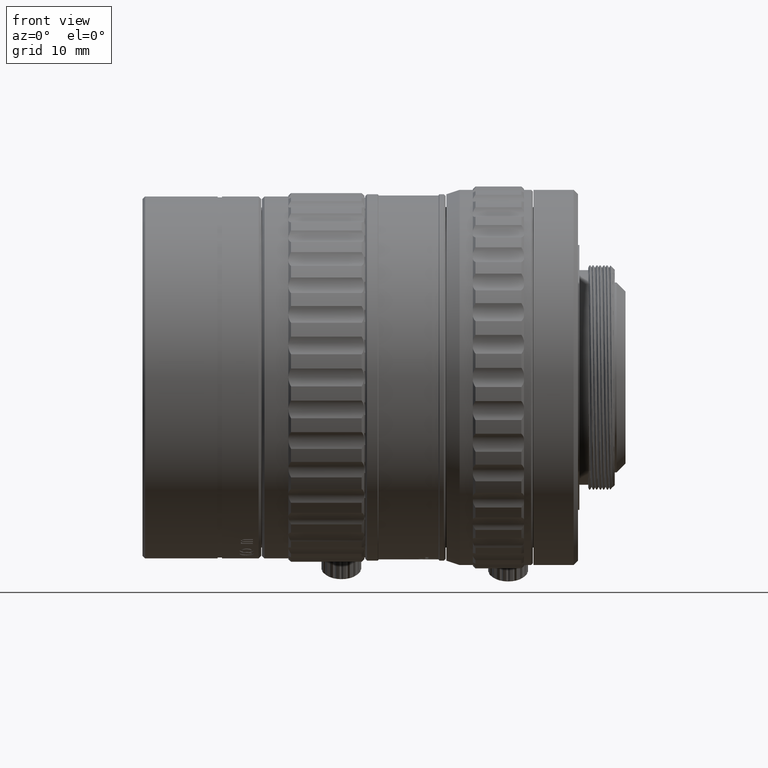
[diagram: clean part render]
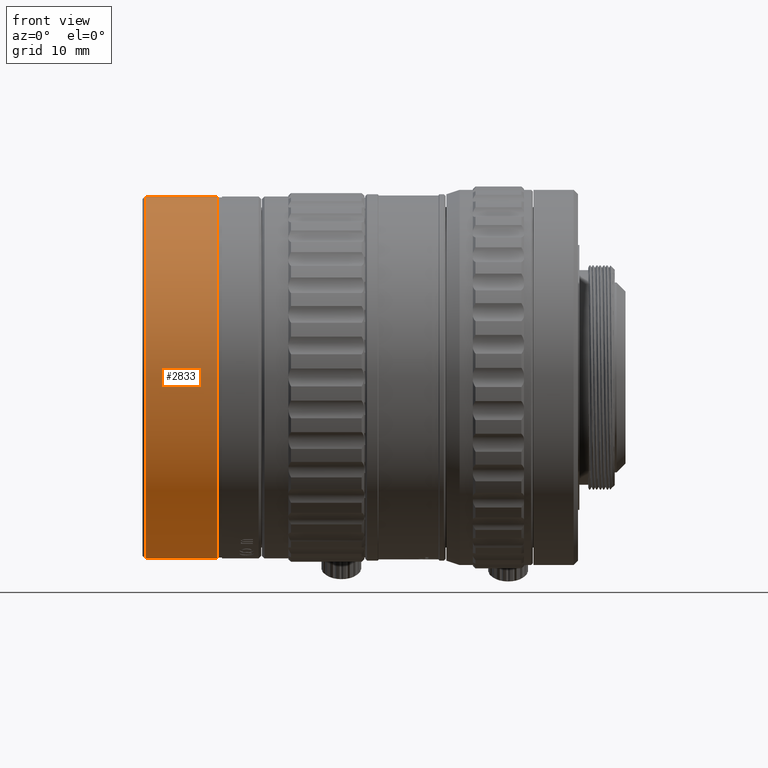
[diagram: same view with one face highlighted and labeled with its STEP entity id]
A machine part, front view. The second image highlights one B-rep face of the part: STEP entity #2833.
In plain terms, the highlighted cylindrical surface (partial cylindrical patch) has radius 20.5 mm, axis along (1, 0, 0).
Its self-contained STEP definition (entity closure, byte-faithful):
#436 = CIRCLE ( 'NONE', #43216, 20.49999724452649374 ) ;
#814 = CARTESIAN_POINT ( 'NONE',  ( 3.899999999999788969, 2.510525938251969563E-15, 20.49999999999914735 ) ) ;
#2723 = DIRECTION ( 'NONE',  ( 1.000000000000000000, 0.000000000000000000, 0.000000000000000000 ) ) ;
#2833 = ADVANCED_FACE ( 'NONE', ( #70667 ), #53490, .T. ) ;
#3721 = DIRECTION ( 'NONE',  ( -4.231033564950421861E-17, -0.8660254037844404840, -0.4999999999999967248 ) ) ;
#6032 = AXIS2_PLACEMENT_3D ( 'NONE', #102312, #103385, #92684 ) ;
#11260 = CARTESIAN_POINT ( 'NONE',  ( -4.299996624874125040, -6.229346521259000526E-14, 2.351849685621999275E-14 ) ) ;
#11930 = VERTEX_POINT ( 'NONE', #814 ) ;
#16589 = ORIENTED_EDGE ( 'NONE', *, *, #82018, .F. ) ;
#23887 = ORIENTED_EDGE ( 'NONE', *, *, #61462, .T. ) ;
#25935 = AXIS2_PLACEMENT_3D ( 'NONE', #11260, #44998, #3721 ) ;
#27179 = DIRECTION ( 'NONE',  ( 1.000000000000000000, 0.000000000000000000, 0.000000000000000000 ) ) ;
#35408 = DIRECTION ( 'NONE',  ( 0.000000000000000000, 0.000000000000000000, -1.000000000000000000 ) ) ;
#36034 = DIRECTION ( 'NONE',  ( 1.000000000000000000, 0.000000000000000000, 0.000000000000000000 ) ) ;
#36807 = CARTESIAN_POINT ( 'NONE',  ( 3.899999999999788969, 0.000000000000000000, -20.49999999999914735 ) ) ;
#36928 = VERTEX_POINT ( 'NONE', #99920 ) ;
#40153 = CIRCLE ( 'NONE', #96809, 20.49999999999914735 ) ;
#43216 = AXIS2_PLACEMENT_3D ( 'NONE', #73273, #105935, #65731 ) ;
#44998 = DIRECTION ( 'NONE',  ( 1.000000000000000000, 0.000000000000000000, 0.000000000000000000 ) ) ;
#45790 = EDGE_CURVE ( 'NONE', #63715, #11930, #84081, .T. ) ;
#47416 = CARTESIAN_POINT ( 'NONE',  ( -4.299997245184878913, 2.510511065238123630E-15, 20.49999724452656125 ) ) ;
#48295 = EDGE_CURVE ( 'NONE', #36928, #50870, #99661, .T. ) ;
#50870 = VERTEX_POINT ( 'NONE', #61697 ) ;
#52844 = VERTEX_POINT ( 'NONE', #36807 ) ;
#53490 = CYLINDRICAL_SURFACE ( 'NONE', #6032, 20.49999999999914735 ) ;
#53795 = LINE ( 'NONE', #93506, #58352 ) ;
#58352 = VECTOR ( 'NONE', #36034, 1000.000000000000000 ) ;
#59709 = ORIENTED_EDGE ( 'NONE', *, *, #48295, .T. ) ;
#61290 = ORIENTED_EDGE ( 'NONE', *, *, #45790, .F. ) ;
#61462 = EDGE_CURVE ( 'NONE', #63715, #36928, #436, .T. ) ;
#61697 = CARTESIAN_POINT ( 'NONE',  ( -4.299996624874125040, -1.025771532158300384E-20, -20.49999662431337910 ) ) ;
#63715 = VERTEX_POINT ( 'NONE', #47416 ) ;
#65731 = DIRECTION ( 'NONE',  ( 0.000000000000000000, -0.8660254037843819752, -0.5000000000000980327 ) ) ;
#67665 = CARTESIAN_POINT ( 'NONE',  ( 3.899999999999788969, 0.000000000000000000, 0.000000000000000000 ) ) ;
#70326 = VECTOR ( 'NONE', #27179, 1000.000000000000000 ) ;
#70667 = FACE_OUTER_BOUND ( 'NONE', #103605, .T. ) ;
#71720 = EDGE_CURVE ( 'NONE', #50870, #52844, #53795, .T. ) ;
#73273 = CARTESIAN_POINT ( 'NONE',  ( -4.299997245184878913, -1.081408321656000246E-13, 6.473679376497000696E-14 ) ) ;
#76074 = CARTESIAN_POINT ( 'NONE',  ( -4.300000000000199663, 2.510525938251969563E-15, 20.49999999999914735 ) ) ;
#82018 = EDGE_CURVE ( 'NONE', #11930, #52844, #40153, .T. ) ;
#84081 = LINE ( 'NONE', #76074, #70326 ) ;
#92684 = DIRECTION ( 'NONE',  ( 0.000000000000000000, 0.000000000000000000, -1.000000000000000000 ) ) ;
#93506 = CARTESIAN_POINT ( 'NONE',  ( -4.300000000000199663, 0.000000000000000000, -20.49999999999914735 ) ) ;
#96809 = AXIS2_PLACEMENT_3D ( 'NONE', #67665, #2723, #35408 ) ;
#98319 = ORIENTED_EDGE ( 'NONE', *, *, #71720, .T. ) ;
#99661 = CIRCLE ( 'NONE', #25935, 20.49999662431340397 ) ;
#99920 = CARTESIAN_POINT ( 'NONE',  ( -4.299996779951813508, -10.24999880565333754, 17.75351872274692866 ) ) ;
#102312 = CARTESIAN_POINT ( 'NONE',  ( -4.300000000000199663, 0.000000000000000000, 0.000000000000000000 ) ) ;
#103385 = DIRECTION ( 'NONE',  ( 1.000000000000000000, 0.000000000000000000, 0.000000000000000000 ) ) ;
#103605 = EDGE_LOOP ( 'NONE', ( #61290, #23887, #59709, #98319, #16589 ) ) ;
#105935 = DIRECTION ( 'NONE',  ( 1.000000000000000000, 0.000000000000000000, 0.000000000000000000 ) ) ;